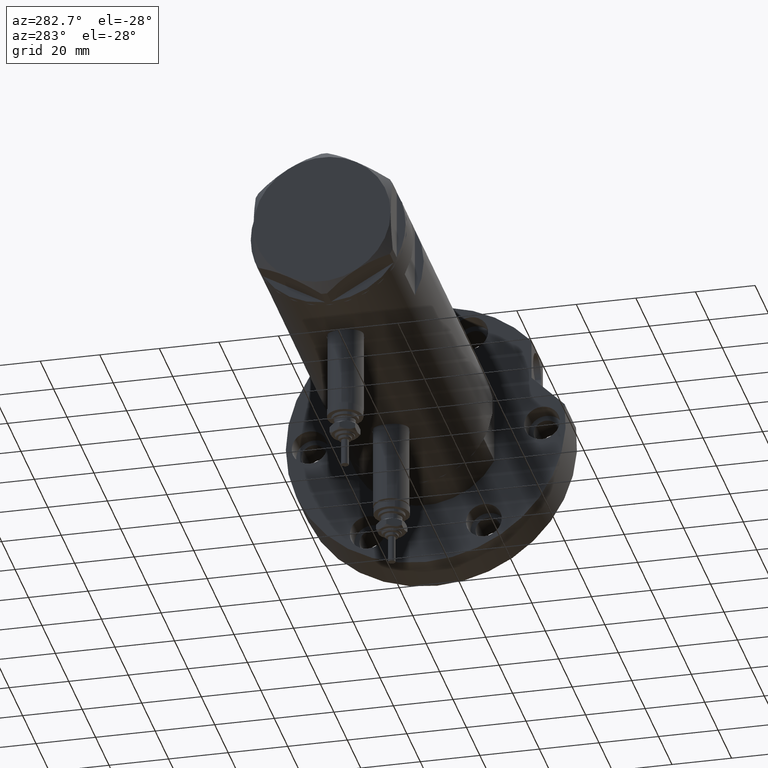
[diagram: clean part render]
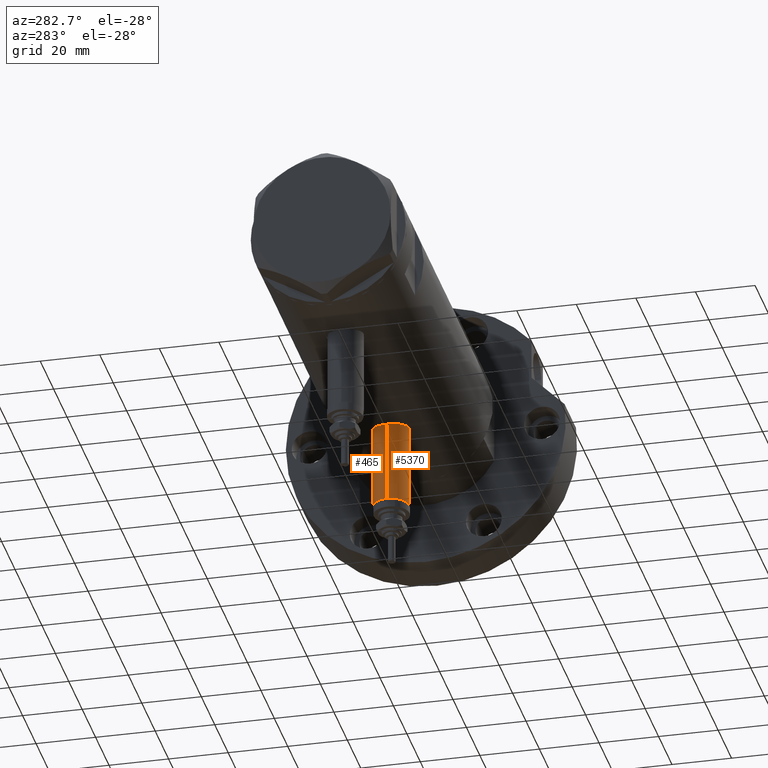
[diagram: same view with one multi-face feature highlighted, each face labeled with its STEP entity id]
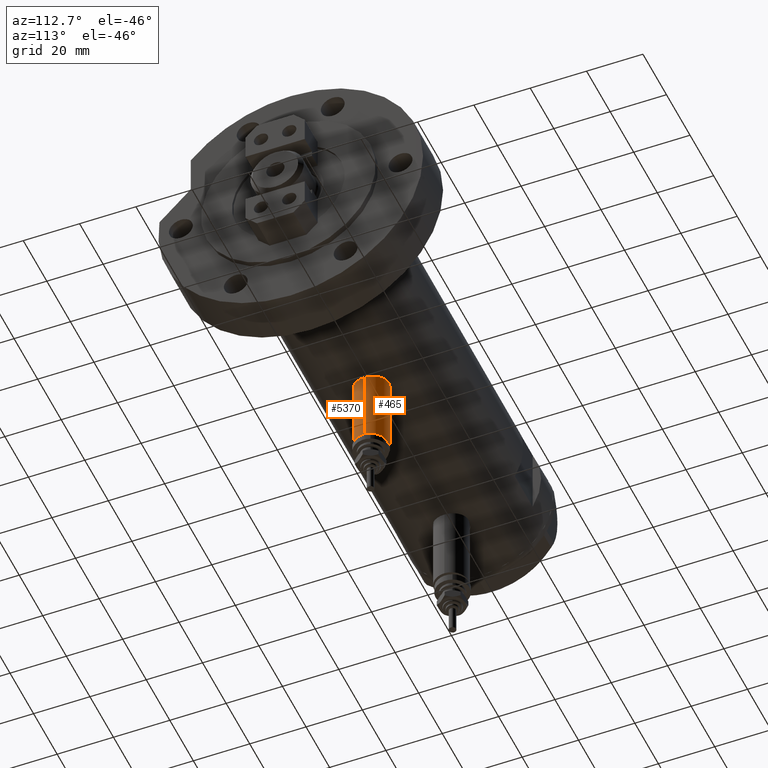
[diagram: same view with one multi-face feature highlighted, each face labeled with its STEP entity id]
A machine part, auxiliary view. The highlighted faces form ONE feature: a constant-radius fillet chain: 2 tangent blend faces with common blend radius 6 mm. The faces share edges in the B-rep.
A second angle (auxiliary view) of the same feature is appended — it is thin or edge-on in the first view.
Their STEP definitions:
[1] entity #465 (Cylinder):
#36 = VERTEX_POINT ( 'NONE', #4334 ) ;
#284 = LINE ( 'NONE', #8339, #497 ) ;
#421 = DIRECTION ( 'NONE',  ( 1.000000000000000000, -0.000000000000000000, -0.000000000000000000 ) ) ;
#446 = DIRECTION ( 'NONE',  ( 0.000000000000000000, 0.000000000000000000, -1.000000000000000000 ) ) ;
#465 = ADVANCED_FACE ( 'NONE', ( #1267 ), #5345, .T. ) ;
#497 = VECTOR ( 'NONE', #3800, 1000.000000000000000 ) ;
#1267 = FACE_OUTER_BOUND ( 'NONE', #6544, .T. ) ;
#1676 = CARTESIAN_POINT ( 'NONE',  ( -24.80000000000000426, 0.000000000000000000, -27.65000000000000924 ) ) ;
#1883 = CIRCLE ( 'NONE', #2977, 6.000000000000001776 ) ;
#1884 = EDGE_CURVE ( 'NONE', #36, #3138, #6284, .T. ) ;
#1984 = CARTESIAN_POINT ( 'NONE',  ( -53.40000000000000568, 0.000000000000000000, -27.65000000000000924 ) ) ;
#2314 = VERTEX_POINT ( 'NONE', #4987 ) ;
#2837 = ORIENTED_EDGE ( 'NONE', *, *, #5348, .F. ) ;
#2977 = AXIS2_PLACEMENT_3D ( 'NONE', #4695, #8231, #6042 ) ;
#3138 = VERTEX_POINT ( 'NONE', #7360 ) ;
#3569 = AXIS2_PLACEMENT_3D ( 'NONE', #1676, #6349, #8209 ) ;
#3763 = DIRECTION ( 'NONE',  ( 1.000000000000000000, -0.000000000000000000, -0.000000000000000000 ) ) ;
#3800 = DIRECTION ( 'NONE',  ( 1.000000000000000000, -0.000000000000000000, -0.000000000000000000 ) ) ;
#3824 = ORIENTED_EDGE ( 'NONE', *, *, #8320, .T. ) ;
#4334 = CARTESIAN_POINT ( 'NONE',  ( -53.40000000000000568, 7.347880794884123680E-16, -21.65000000000000213 ) ) ;
#4695 = CARTESIAN_POINT ( 'NONE',  ( -53.40000000000000568, 0.000000000000000000, -27.65000000000000924 ) ) ;
#4987 = CARTESIAN_POINT ( 'NONE',  ( -24.80000000000000426, 0.000000000000000000, -33.65000000000001279 ) ) ;
#5322 = ORIENTED_EDGE ( 'NONE', *, *, #1884, .T. ) ;
#5345 = CYLINDRICAL_SURFACE ( 'NONE', #5798, 6.000000000000005329 ) ;
#5348 = EDGE_CURVE ( 'NONE', #36, #6131, #1883, .T. ) ;
#5628 = CARTESIAN_POINT ( 'NONE',  ( -53.40000000000000568, 7.347880794884122694E-16, -21.65000000000000568 ) ) ;
#5798 = AXIS2_PLACEMENT_3D ( 'NONE', #1984, #3763, #446 ) ;
#6042 = DIRECTION ( 'NONE',  ( 0.000000000000000000, 0.000000000000000000, 1.000000000000000000 ) ) ;
#6131 = VERTEX_POINT ( 'NONE', #8217 ) ;
#6251 = EDGE_CURVE ( 'NONE', #6131, #2314, #284, .T. ) ;
#6284 = LINE ( 'NONE', #5628, #7944 ) ;
#6349 = DIRECTION ( 'NONE',  ( -1.000000000000000000, 0.000000000000000000, 0.000000000000000000 ) ) ;
#6544 = EDGE_LOOP ( 'NONE', ( #2837, #5322, #3824, #8665 ) ) ;
#7360 = CARTESIAN_POINT ( 'NONE',  ( -24.80000000000000426, 7.347880794884123680E-16, -21.65000000000000213 ) ) ;
#7944 = VECTOR ( 'NONE', #421, 1000.000000000000000 ) ;
#8209 = DIRECTION ( 'NONE',  ( 0.000000000000000000, 0.000000000000000000, 1.000000000000000000 ) ) ;
#8217 = CARTESIAN_POINT ( 'NONE',  ( -53.40000000000000568, 0.000000000000000000, -33.65000000000001279 ) ) ;
#8231 = DIRECTION ( 'NONE',  ( -1.000000000000000000, 0.000000000000000000, 0.000000000000000000 ) ) ;
#8320 = EDGE_CURVE ( 'NONE', #3138, #2314, #8386, .T. ) ;
#8339 = CARTESIAN_POINT ( 'NONE',  ( -53.40000000000000568, 0.000000000000000000, -33.65000000000001279 ) ) ;
#8386 = CIRCLE ( 'NONE', #3569, 6.000000000000001776 ) ;
#8665 = ORIENTED_EDGE ( 'NONE', *, *, #6251, .F. ) ;
[2] entity #5370 (Cylinder):
#36 = VERTEX_POINT ( 'NONE', #4334 ) ;
#78 = AXIS2_PLACEMENT_3D ( 'NONE', #4640, #2618, #1927 ) ;
#172 = DIRECTION ( 'NONE',  ( 1.000000000000000000, -0.000000000000000000, -0.000000000000000000 ) ) ;
#284 = LINE ( 'NONE', #8339, #497 ) ;
#421 = DIRECTION ( 'NONE',  ( 1.000000000000000000, -0.000000000000000000, -0.000000000000000000 ) ) ;
#497 = VECTOR ( 'NONE', #3800, 1000.000000000000000 ) ;
#844 = ORIENTED_EDGE ( 'NONE', *, *, #1715, .T. ) ;
#1438 = CYLINDRICAL_SURFACE ( 'NONE', #3550, 6.000000000000005329 ) ;
#1715 = EDGE_CURVE ( 'NONE', #2314, #3138, #5689, .T. ) ;
#1884 = EDGE_CURVE ( 'NONE', #36, #3138, #6284, .T. ) ;
#1927 = DIRECTION ( 'NONE',  ( 0.000000000000000000, 0.000000000000000000, 1.000000000000000000 ) ) ;
#2314 = VERTEX_POINT ( 'NONE', #4987 ) ;
#2618 = DIRECTION ( 'NONE',  ( -1.000000000000000000, 0.000000000000000000, 0.000000000000000000 ) ) ;
#2679 = EDGE_CURVE ( 'NONE', #6131, #36, #4944, .T. ) ;
#3138 = VERTEX_POINT ( 'NONE', #7360 ) ;
#3550 = AXIS2_PLACEMENT_3D ( 'NONE', #4119, #172, #4830 ) ;
#3800 = DIRECTION ( 'NONE',  ( 1.000000000000000000, -0.000000000000000000, -0.000000000000000000 ) ) ;
#4119 = CARTESIAN_POINT ( 'NONE',  ( -53.40000000000000568, 0.000000000000000000, -27.65000000000000924 ) ) ;
#4334 = CARTESIAN_POINT ( 'NONE',  ( -53.40000000000000568, 7.347880794884123680E-16, -21.65000000000000213 ) ) ;
#4507 = ORIENTED_EDGE ( 'NONE', *, *, #6251, .T. ) ;
#4640 = CARTESIAN_POINT ( 'NONE',  ( -24.80000000000000426, 0.000000000000000000, -27.65000000000000924 ) ) ;
#4664 = AXIS2_PLACEMENT_3D ( 'NONE', #6666, #6148, #5536 ) ;
#4830 = DIRECTION ( 'NONE',  ( 0.000000000000000000, 0.000000000000000000, -1.000000000000000000 ) ) ;
#4944 = CIRCLE ( 'NONE', #4664, 6.000000000000001776 ) ;
#4987 = CARTESIAN_POINT ( 'NONE',  ( -24.80000000000000426, 0.000000000000000000, -33.65000000000001279 ) ) ;
#5240 = ORIENTED_EDGE ( 'NONE', *, *, #1884, .F. ) ;
#5370 = ADVANCED_FACE ( 'NONE', ( #7492 ), #1438, .T. ) ;
#5536 = DIRECTION ( 'NONE',  ( 0.000000000000000000, 0.000000000000000000, 1.000000000000000000 ) ) ;
#5628 = CARTESIAN_POINT ( 'NONE',  ( -53.40000000000000568, 7.347880794884122694E-16, -21.65000000000000568 ) ) ;
#5689 = CIRCLE ( 'NONE', #78, 6.000000000000001776 ) ;
#6131 = VERTEX_POINT ( 'NONE', #8217 ) ;
#6148 = DIRECTION ( 'NONE',  ( -1.000000000000000000, 0.000000000000000000, 0.000000000000000000 ) ) ;
#6251 = EDGE_CURVE ( 'NONE', #6131, #2314, #284, .T. ) ;
#6284 = LINE ( 'NONE', #5628, #7944 ) ;
#6666 = CARTESIAN_POINT ( 'NONE',  ( -53.40000000000000568, 0.000000000000000000, -27.65000000000000924 ) ) ;
#7140 = EDGE_LOOP ( 'NONE', ( #5240, #7648, #4507, #844 ) ) ;
#7360 = CARTESIAN_POINT ( 'NONE',  ( -24.80000000000000426, 7.347880794884123680E-16, -21.65000000000000213 ) ) ;
#7492 = FACE_OUTER_BOUND ( 'NONE', #7140, .T. ) ;
#7648 = ORIENTED_EDGE ( 'NONE', *, *, #2679, .F. ) ;
#7944 = VECTOR ( 'NONE', #421, 1000.000000000000000 ) ;
#8217 = CARTESIAN_POINT ( 'NONE',  ( -53.40000000000000568, 0.000000000000000000, -33.65000000000001279 ) ) ;
#8339 = CARTESIAN_POINT ( 'NONE',  ( -53.40000000000000568, 0.000000000000000000, -33.65000000000001279 ) ) ;